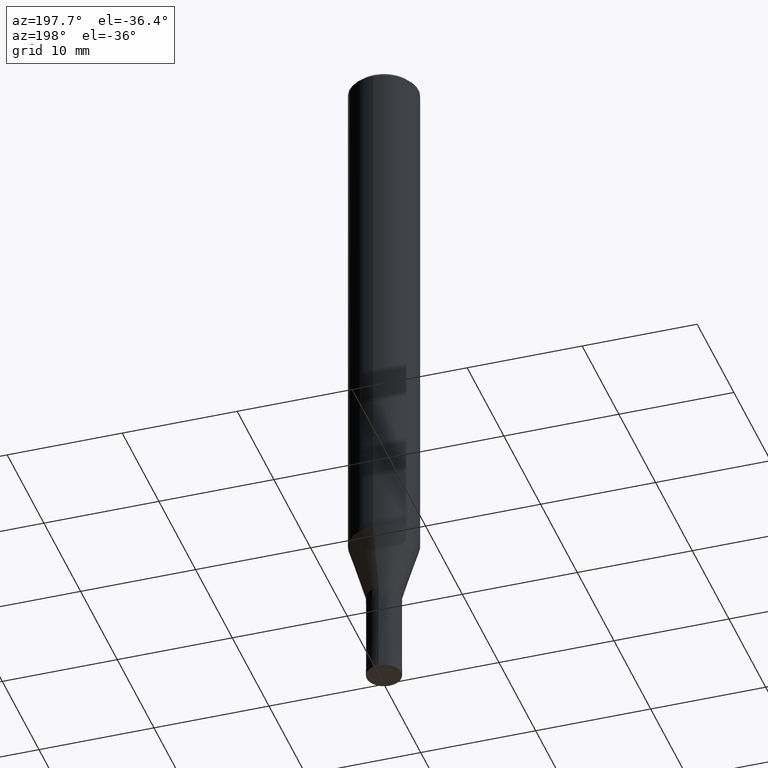
[diagram: clean part render]
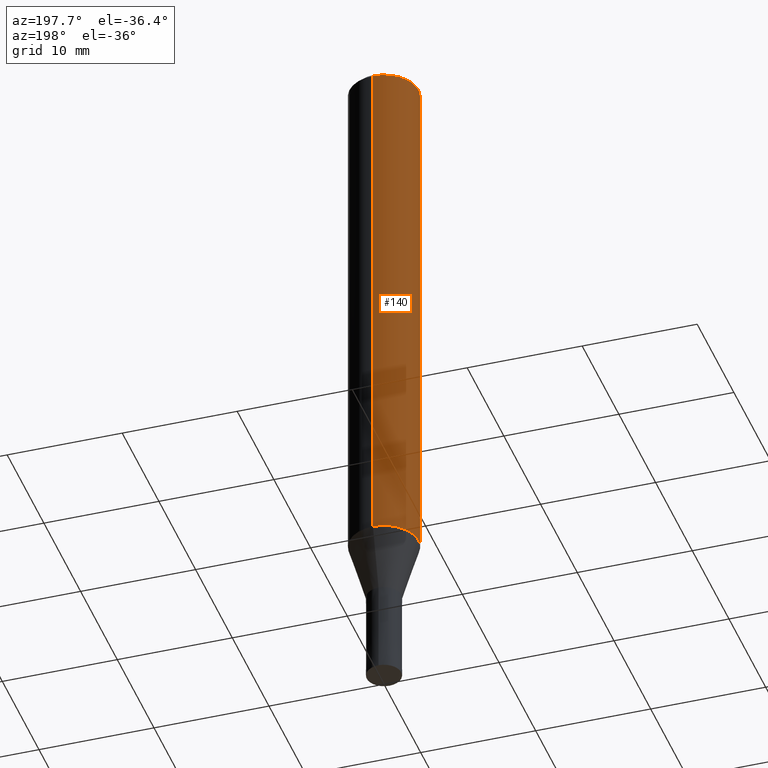
[diagram: same view with one face highlighted and labeled with its STEP entity id]
A machine part, auxiliary view. The second image highlights one B-rep face of the part: STEP entity #140.
In plain terms, the highlighted cylindrical surface (edge-blend (fillet) strip) has radius 3 mm, axis along (-0, -0, 1).
Its self-contained STEP definition (entity closure, byte-faithful):
#88=EDGE_CURVE('',#132,#124,#210,.T.);
#124=VERTEX_POINT('',#249);
#128=VERTEX_POINT('',#253);
#132=VERTEX_POINT('',#257);
#138=EDGE_CURVE('',#166,#128,#263,.T.);
#140=ADVANCED_FACE('',(#265),#266,.T.);
#146=EDGE_CURVE('',#128,#132,#272,.T.);
#166=VERTEX_POINT('',#298);
#174=EDGE_CURVE('',#166,#124,#307,.T.);
#210=LINE('',#338,#339);
#249=CARTESIAN_POINT('',(0.0,3.0,-46.769));
#253=CARTESIAN_POINT('',(3.67381906146713E-016,-3.0,-0.399999999999999));
#257=CARTESIAN_POINT('',(0.0,3.0,-0.399999999999999));
#263=LINE('',#408,#409);
#265=FACE_OUTER_BOUND('',#411,.T.);
#266=CYLINDRICAL_SURFACE('',#412,3.0);
#272=CIRCLE('',#420,3.0);
#298=CARTESIAN_POINT('',(3.67381906146713E-016,-3.0,-46.769));
#307=CIRCLE('',#459,3.0);
#338=CARTESIAN_POINT('',(-3.67381906146713E-016,3.0,-23.5845));
#339=VECTOR('',#484,1.0);
#408=CARTESIAN_POINT('',(3.67381906146713E-016,-3.0,-23.5845));
#409=VECTOR('',#536,1.0);
#411=EDGE_LOOP('',(#538,#539,#540,#541));
#412=AXIS2_PLACEMENT_3D('',#542,#543,#544);
#420=AXIS2_PLACEMENT_3D('',#548,#549,#550);
#459=AXIS2_PLACEMENT_3D('',#601,#602,#603);
#484=DIRECTION('',(0.0,0.0,-1.0));
#536=DIRECTION('',(-0.0,-0.0,1.0));
#538=ORIENTED_EDGE('',*,*,#88,.T.);
#539=ORIENTED_EDGE('',*,*,#174,.F.);
#540=ORIENTED_EDGE('',*,*,#138,.T.);
#541=ORIENTED_EDGE('',*,*,#146,.T.);
#542=CARTESIAN_POINT('',(0.0,0.0,-23.5845));
#543=DIRECTION('',(-0.0,-0.0,1.0));
#544=DIRECTION('',(0.0,1.0,0.0));
#548=CARTESIAN_POINT('',(0.0,0.0,-0.399999999999999));
#549=DIRECTION('',(0.0,0.0,-1.0));
#550=DIRECTION('',(0.0,1.0,0.0));
#601=CARTESIAN_POINT('',(0.0,0.0,-46.769));
#602=DIRECTION('',(0.0,0.0,-1.0));
#603=DIRECTION('',(0.0,1.0,0.0));